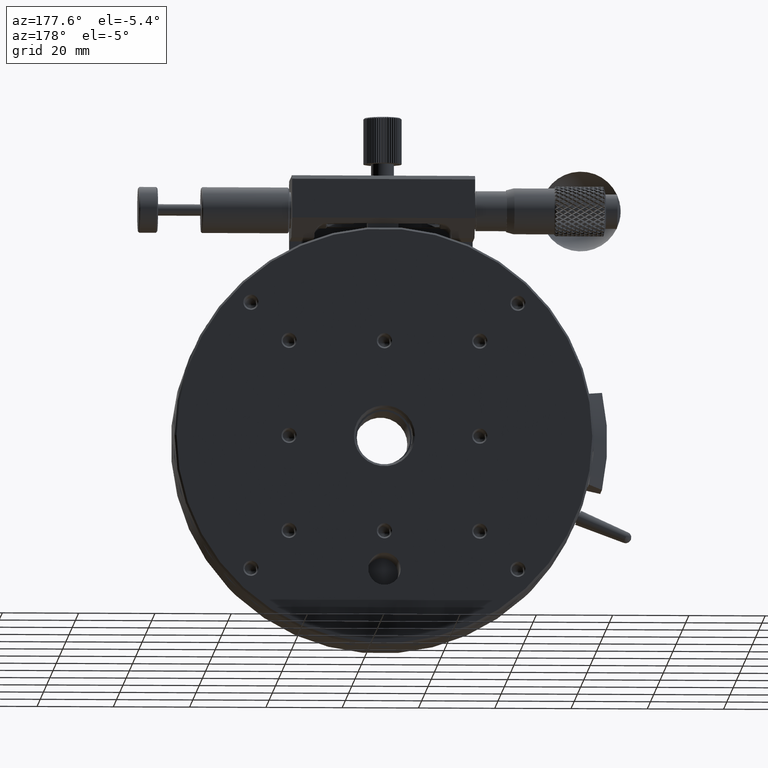
[diagram: clean part render]
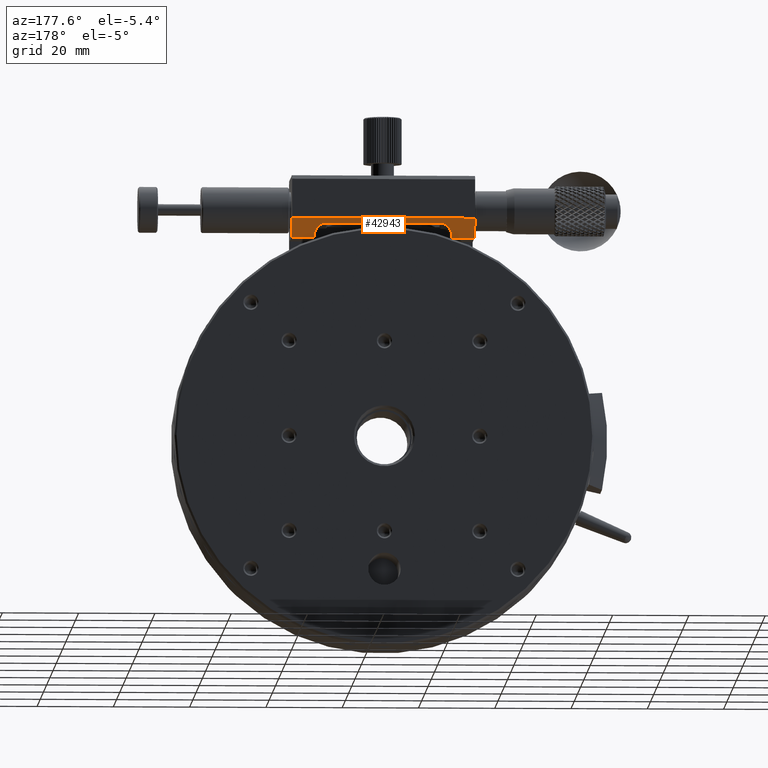
[diagram: same view with one face highlighted and labeled with its STEP entity id]
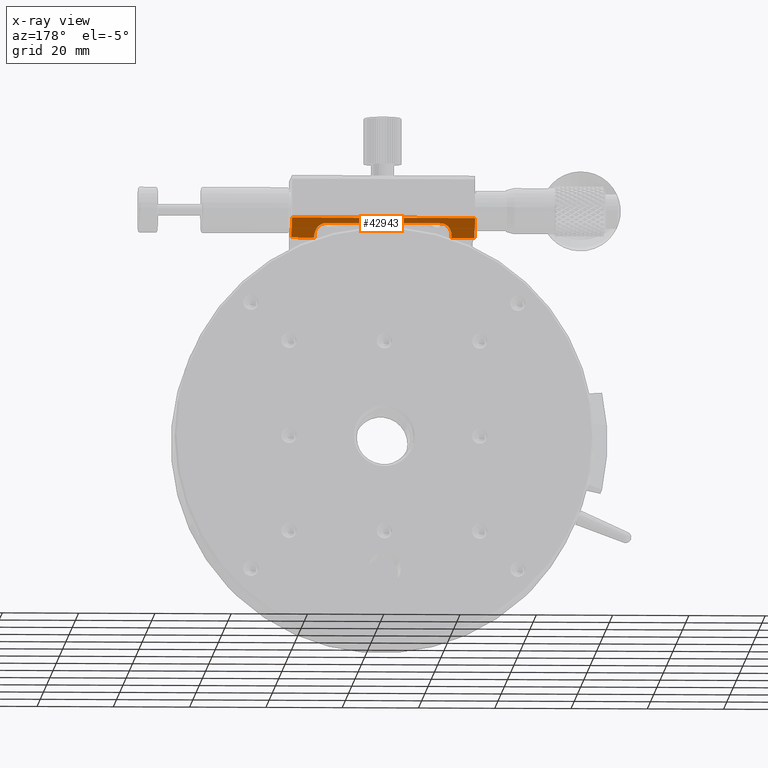
[diagram: x-ray of the same camera — body ghosted, the highlighted face saturated]
A machine part, auxiliary view. The second image highlights one B-rep face of the part: STEP entity #42943.
The next image is the same camera in x-ray: the body ghosted, the highlighted face saturated — about 0% of this face is hidden behind the body in this view.
In plain terms, the highlighted planar face has unit normal (0, -0.7071, 0.7071).
Its self-contained STEP definition (entity closure, byte-faithful):
#488 = CARTESIAN_POINT ( 'NONE',  ( 79.00000000000000000, 20.20000000000000284, 2.799999999999998934 ) ) ;
#804 = CARTESIAN_POINT ( 'NONE',  ( 31.00000000000000000, 20.20000000000000284, 2.799999999999998934 ) ) ;
#2445 = CARTESIAN_POINT ( 'NONE',  ( 73.00000000000000000, 15.40000000000000213, -2.000000000000005773 ) ) ;
#5299 = ORIENTED_EDGE ( 'NONE', *, *, #66542, .F. ) ;
#5346 = VERTEX_POINT ( 'NONE', #488 ) ;
#8819 = VERTEX_POINT ( 'NONE', #2445 ) ;
#9469 = EDGE_LOOP ( 'NONE', ( #62053, #77446, #78980, #58757, #5299, #28859, #77455, #35071, #54315, #15572 ) ) ;
#9823 = VERTEX_POINT ( 'NONE', #81465 ) ;
#10225 = CARTESIAN_POINT ( 'NONE',  ( 72.99999999999998579, 15.90000000000001812, -1.499999999999990008 ) ) ;
#12202 = VECTOR ( 'NONE', #18607, 1000.000000000000000 ) ;
#12367 = CARTESIAN_POINT ( 'NONE',  ( 37.00000000000000000, 15.90000000000000391, -1.499999999999999556 ) ) ;
#12734 = VERTEX_POINT ( 'NONE', #18708 ) ;
#13512 = DIRECTION ( 'NONE',  ( 0.000000000000000000, 0.7071067811865465735, 0.7071067811865483499 ) ) ;
#14092 = EDGE_CURVE ( 'NONE', #73636, #5346, #79705, .T. ) ;
#15572 = ORIENTED_EDGE ( 'NONE', *, *, #53159, .F. ) ;
#15622 = DIRECTION ( 'NONE',  ( 1.000000000000000000, 0.000000000000000000, 0.000000000000000000 ) ) ;
#15664 = CARTESIAN_POINT ( 'NONE',  ( 79.00000000000000000, 15.40000000000000568, -2.000000000000005329 ) ) ;
#15994 = VERTEX_POINT ( 'NONE', #68254 ) ;
#18607 = DIRECTION ( 'NONE',  ( 1.000000000000000000, 0.000000000000000000, 0.000000000000000000 ) ) ;
#18708 = CARTESIAN_POINT ( 'NONE',  ( 72.99999999999998579, 15.90000000000001812, -1.499999999999990008 ) ) ;
#20529 = LINE ( 'NONE', #54138, #36863 ) ;
#22755 = VERTEX_POINT ( 'NONE', #804 ) ;
#27260 = DIRECTION ( 'NONE',  ( 0.000000000000000000, -0.7071067811865479058, -0.7071067811865472397 ) ) ;
#28859 = ORIENTED_EDGE ( 'NONE', *, *, #78725, .F. ) ;
#29306 =( BOUNDED_CURVE ( )  B_SPLINE_CURVE ( 3, ( #84377, #37819, #37372, #10225 ),
 .UNSPECIFIED., .F., .T. ) 
 B_SPLINE_CURVE_WITH_KNOTS ( ( 4, 4 ),
 ( 3.141592653589793116, 4.712388980384693227 ),
 .UNSPECIFIED. ) 
 CURVE ( )  GEOMETRIC_REPRESENTATION_ITEM ( )  RATIONAL_B_SPLINE_CURVE ( ( 1.000000000000000000, 0.8047378541243641603, 0.8047378541243641603, 1.000000000000000000 ) ) 
 REPRESENTATION_ITEM ( '' )  );
#32638 = EDGE_CURVE ( 'NONE', #88778, #22755, #90375, .T. ) ;
#33259 = CARTESIAN_POINT ( 'NONE',  ( 79.00000000000000000, 15.40000000000000036, -2.000000000000010658 ) ) ;
#35071 = ORIENTED_EDGE ( 'NONE', *, *, #60231, .F. ) ;
#35408 = LINE ( 'NONE', #63048, #40463 ) ;
#36863 = VECTOR ( 'NONE', #82176, 999.9999999999998863 ) ;
#37372 = CARTESIAN_POINT ( 'NONE',  ( 73.00000000000000000, 17.65735931288072535, 0.2573593128807176167 ) ) ;
#37819 = CARTESIAN_POINT ( 'NONE',  ( 71.75735931288070901, 18.90000000000000568, 1.499999999999999778 ) ) ;
#39480 = VECTOR ( 'NONE', #43727, 1000.000000000000000 ) ;
#40416 = CARTESIAN_POINT ( 'NONE',  ( 38.24264068711928388, 18.90000000000000568, 1.500000000000000000 ) ) ;
#40463 = VECTOR ( 'NONE', #15622, 1000.000000000000000 ) ;
#42043 = VECTOR ( 'NONE', #13512, 1000.000000000000114 ) ;
#42943 = ADVANCED_FACE ( 'NONE', ( #66430 ), #46189, .F. ) ;
#43727 = DIRECTION ( 'NONE',  ( 1.000000000000000000, 0.000000000000000000, 0.000000000000000000 ) ) ;
#44248 = VECTOR ( 'NONE', #27260, 999.9999999999998863 ) ;
#44764 = CARTESIAN_POINT ( 'NONE',  ( 79.00000000000000000, 15.40000000000000036, -2.000000000000010658 ) ) ;
#46189 = PLANE ( 'NONE',  #87096 ) ;
#47078 = DIRECTION ( 'NONE',  ( 0.000000000000000000, -0.7071067811865480168, 0.7071067811865470176 ) ) ;
#47591 = CARTESIAN_POINT ( 'NONE',  ( 79.00000000000000000, 18.90000000000000213, 1.499999999999996669 ) ) ;
#47824 = CARTESIAN_POINT ( 'NONE',  ( 79.00000000000000000, 15.40000000000000036, -2.000000000000009770 ) ) ;
#50351 = CARTESIAN_POINT ( 'NONE',  ( 37.00000000000000000, 15.40000000000000213, -2.000000000000007105 ) ) ;
#53052 = DIRECTION ( 'NONE',  ( 0.000000000000000000, 0.7071067811865465735, 0.7071067811865483499 ) ) ;
#53159 = EDGE_CURVE ( 'NONE', #69122, #9823, #20529, .T. ) ;
#54138 = CARTESIAN_POINT ( 'NONE',  ( 37.00000000000000000, 15.40000000000000036, -2.000000000000000000 ) ) ;
#54315 = ORIENTED_EDGE ( 'NONE', *, *, #82248, .F. ) ;
#58757 = ORIENTED_EDGE ( 'NONE', *, *, #14092, .F. ) ;
#59962 =( BOUNDED_CURVE ( )  B_SPLINE_CURVE ( 3, ( #12367, #62522, #40416, #68982 ),
 .UNSPECIFIED., .F., .T. ) 
 B_SPLINE_CURVE_WITH_KNOTS ( ( 4, 4 ),
 ( 1.570796326794895670, 3.141592653589793116 ),
 .UNSPECIFIED. ) 
 CURVE ( )  GEOMETRIC_REPRESENTATION_ITEM ( )  RATIONAL_B_SPLINE_CURVE ( ( 1.000000000000000000, 0.8047378541243648264, 0.8047378541243648264, 1.000000000000000000 ) ) 
 REPRESENTATION_ITEM ( '' )  );
#60231 = EDGE_CURVE ( 'NONE', #15994, #70312, #81614, .T. ) ;
#62053 = ORIENTED_EDGE ( 'NONE', *, *, #86461, .F. ) ;
#62522 = CARTESIAN_POINT ( 'NONE',  ( 37.00000000000000000, 17.65735931288072180, 0.2573593128807130648 ) ) ;
#63048 = CARTESIAN_POINT ( 'NONE',  ( 79.00000000000000000, 20.19999999999999929, 2.799999999999999822 ) ) ;
#65660 = CARTESIAN_POINT ( 'NONE',  ( 31.00000000000000000, 15.39999999999999858, -2.000000000000011102 ) ) ;
#66430 = FACE_OUTER_BOUND ( 'NONE', #9469, .T. ) ;
#66542 = EDGE_CURVE ( 'NONE', #8819, #73636, #78656, .T. ) ;
#68254 = CARTESIAN_POINT ( 'NONE',  ( 40.00000000000000000, 18.90000000000000568, 1.499999999999999112 ) ) ;
#68982 = CARTESIAN_POINT ( 'NONE',  ( 40.00000000000000000, 18.90000000000000568, 1.499999999999999112 ) ) ;
#69122 = VERTEX_POINT ( 'NONE', #50351 ) ;
#69653 = CARTESIAN_POINT ( 'NONE',  ( 31.00000000000000000, 15.40000000000000036, -2.000000000000010658 ) ) ;
#70312 = VERTEX_POINT ( 'NONE', #73385 ) ;
#73385 = CARTESIAN_POINT ( 'NONE',  ( 70.00000000000000000, 18.90000000000000568, 1.499999999999999112 ) ) ;
#73636 = VERTEX_POINT ( 'NONE', #47824 ) ;
#74856 = LINE ( 'NONE', #90038, #87586 ) ;
#75144 = DIRECTION ( 'NONE',  ( 0.000000000000000000, -0.7071067811865470176, -0.7071067811865480168 ) ) ;
#77446 = ORIENTED_EDGE ( 'NONE', *, *, #32638, .T. ) ;
#77455 = ORIENTED_EDGE ( 'NONE', *, *, #86980, .F. ) ;
#78656 = LINE ( 'NONE', #15664, #39480 ) ;
#78725 = EDGE_CURVE ( 'NONE', #12734, #8819, #90330, .T. ) ;
#78951 = EDGE_CURVE ( 'NONE', #22755, #5346, #35408, .T. ) ;
#78980 = ORIENTED_EDGE ( 'NONE', *, *, #78951, .T. ) ;
#79705 = LINE ( 'NONE', #44764, #80986 ) ;
#80986 = VECTOR ( 'NONE', #53052, 1000.000000000000114 ) ;
#81465 = CARTESIAN_POINT ( 'NONE',  ( 37.00000000000000000, 15.90000000000000391, -1.499999999999999556 ) ) ;
#81614 = LINE ( 'NONE', #47591, #12202 ) ;
#82176 = DIRECTION ( 'NONE',  ( 0.000000000000000000, 0.7071067811865479058, 0.7071067811865472397 ) ) ;
#82248 = EDGE_CURVE ( 'NONE', #9823, #15994, #59962, .T. ) ;
#82957 = CARTESIAN_POINT ( 'NONE',  ( 73.00000000000000000, 15.90000000000000036, -1.500000000000000000 ) ) ;
#84377 = CARTESIAN_POINT ( 'NONE',  ( 70.00000000000000000, 18.90000000000000568, 1.499999999999999112 ) ) ;
#86461 = EDGE_CURVE ( 'NONE', #88778, #69122, #74856, .T. ) ;
#86980 = EDGE_CURVE ( 'NONE', #70312, #12734, #29306, .T. ) ;
#87096 = AXIS2_PLACEMENT_3D ( 'NONE', #33259, #47078, #75144 ) ;
#87586 = VECTOR ( 'NONE', #90492, 1000.000000000000000 ) ;
#88778 = VERTEX_POINT ( 'NONE', #65660 ) ;
#90038 = CARTESIAN_POINT ( 'NONE',  ( 79.00000000000000000, 15.40000000000000036, -2.000000000000010658 ) ) ;
#90330 = LINE ( 'NONE', #82957, #44248 ) ;
#90375 = LINE ( 'NONE', #69653, #42043 ) ;
#90492 = DIRECTION ( 'NONE',  ( 1.000000000000000000, 0.000000000000000000, 0.000000000000000000 ) ) ;